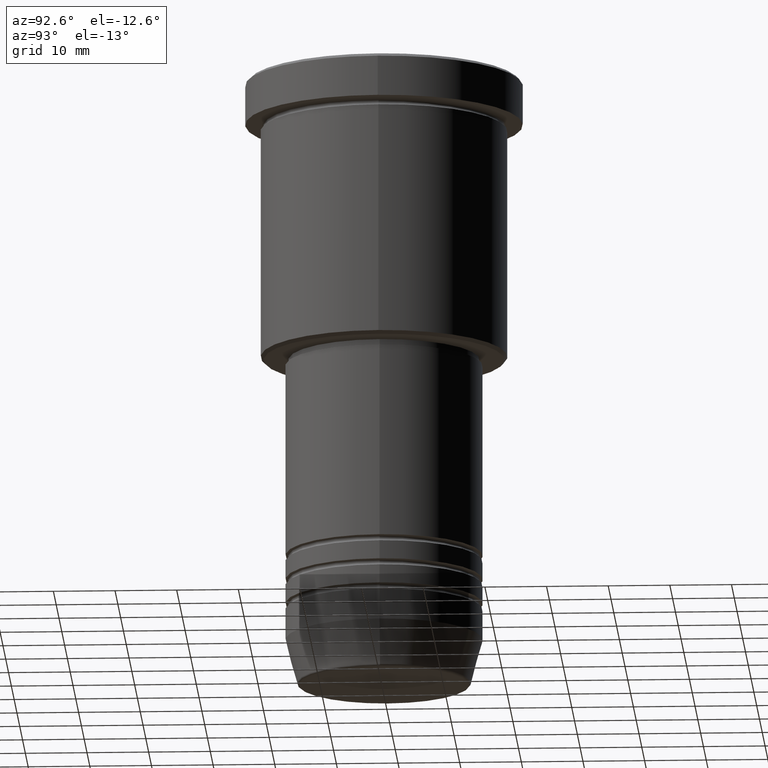
[diagram: clean part render]
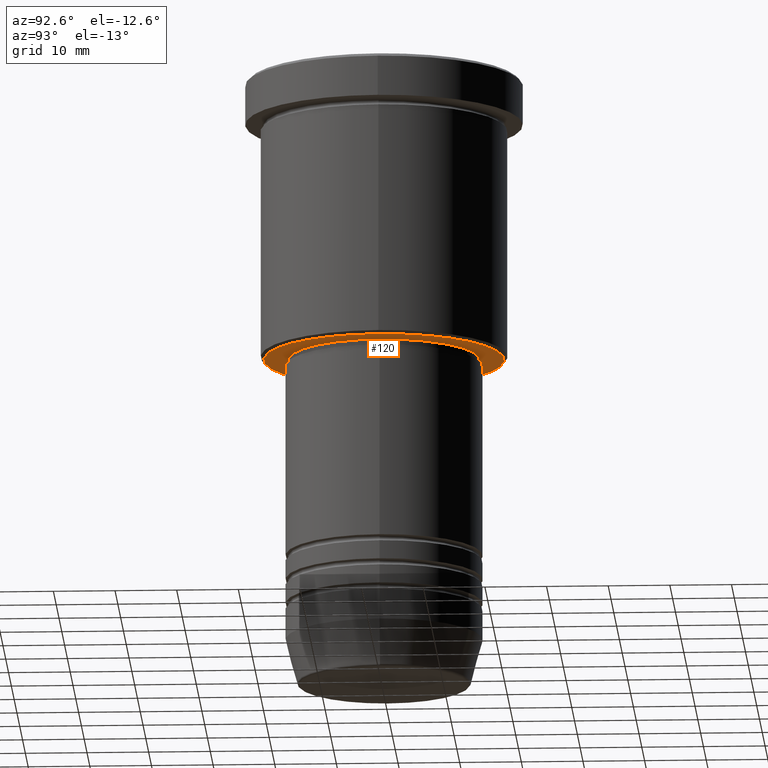
[diagram: same view with one face highlighted and labeled with its STEP entity id]
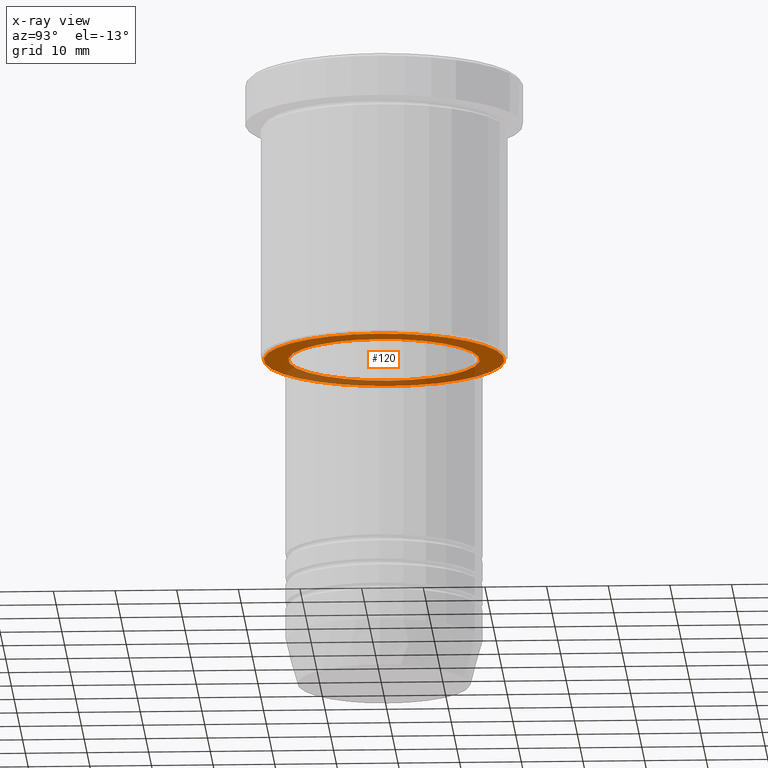
[diagram: x-ray of the same camera — body ghosted, the highlighted face saturated]
A machine part, auxiliary view. The second image highlights one B-rep face of the part: STEP entity #120.
The next image is the same camera in x-ray: the body ghosted, the highlighted face saturated — about 34% of this face is hidden behind the body in this view.
In plain terms, the highlighted planar face has unit normal (0, 0, -1).
Its self-contained STEP definition (entity closure, byte-faithful):
#6 = DIRECTION ( 'NONE',  ( -1.000000000000000000, 0.000000000000000000, 0.000000000000000000 ) ) ;
#28 = VERTEX_POINT ( 'NONE', #458 ) ;
#48 = CARTESIAN_POINT ( 'NONE',  ( 0.000000000000000000, 20.00000000000000355, -46.00000000000000000 ) ) ;
#64 = EDGE_CURVE ( 'NONE', #28, #90, #512, .T. ) ;
#77 = EDGE_LOOP ( 'NONE', ( #410, #918 ) ) ;
#90 = VERTEX_POINT ( 'NONE', #511 ) ;
#120 = ADVANCED_FACE ( 'NONE', ( #1132, #304 ), #502, .T. ) ;
#152 = DIRECTION ( 'NONE',  ( -1.000000000000000000, 0.000000000000000000, 0.000000000000000000 ) ) ;
#180 = ORIENTED_EDGE ( 'NONE', *, *, #64, .T. ) ;
#224 = CIRCLE ( 'NONE', #1049, 15.50000000000000000 ) ;
#227 = CIRCLE ( 'NONE', #263, 19.50000000000001776 ) ;
#263 = AXIS2_PLACEMENT_3D ( 'NONE', #1042, #509, #152 ) ;
#302 = ORIENTED_EDGE ( 'NONE', *, *, #400, .T. ) ;
#304 = FACE_BOUND ( 'NONE', #1026, .T. ) ;
#400 = EDGE_CURVE ( 'NONE', #90, #28, #224, .T. ) ;
#408 = VERTEX_POINT ( 'NONE', #896 ) ;
#410 = ORIENTED_EDGE ( 'NONE', *, *, #805, .T. ) ;
#429 = CARTESIAN_POINT ( 'NONE',  ( 0.000000000000000000, 0.000000000000000000, -46.00000000000000000 ) ) ;
#458 = CARTESIAN_POINT ( 'NONE',  ( -15.50000000000000000, 1.898202538678397557E-15, -46.00000000000000000 ) ) ;
#476 = CARTESIAN_POINT ( 'NONE',  ( -19.50000000000001776, 2.418677428316023909E-15, -46.00000000000000000 ) ) ;
#502 = PLANE ( 'NONE',  #720 ) ;
#509 = DIRECTION ( 'NONE',  ( 0.000000000000000000, 0.000000000000000000, -1.000000000000000000 ) ) ;
#511 = CARTESIAN_POINT ( 'NONE',  ( 15.50000000000000000, 0.000000000000000000, -46.00000000000000000 ) ) ;
#512 = CIRCLE ( 'NONE', #1174, 15.50000000000000000 ) ;
#519 = VERTEX_POINT ( 'NONE', #476 ) ;
#561 = CARTESIAN_POINT ( 'NONE',  ( 0.000000000000000000, 0.000000000000000000, -46.00000000000000000 ) ) ;
#713 = DIRECTION ( 'NONE',  ( -0.000000000000000000, -0.000000000000000000, 1.000000000000000000 ) ) ;
#720 = AXIS2_PLACEMENT_3D ( 'NONE', #48, #946, #857 ) ;
#805 = EDGE_CURVE ( 'NONE', #408, #519, #227, .T. ) ;
#833 = CIRCLE ( 'NONE', #1088, 19.50000000000001776 ) ;
#857 = DIRECTION ( 'NONE',  ( -1.000000000000000000, 0.000000000000000000, -0.000000000000000000 ) ) ;
#896 = CARTESIAN_POINT ( 'NONE',  ( 19.50000000000001776, 0.000000000000000000, -46.00000000000000000 ) ) ;
#918 = ORIENTED_EDGE ( 'NONE', *, *, #1055, .T. ) ;
#921 = DIRECTION ( 'NONE',  ( 0.000000000000000000, 0.000000000000000000, -1.000000000000000000 ) ) ;
#946 = DIRECTION ( 'NONE',  ( 0.000000000000000000, 0.000000000000000000, -1.000000000000000000 ) ) ;
#981 = DIRECTION ( 'NONE',  ( -0.000000000000000000, -0.000000000000000000, 1.000000000000000000 ) ) ;
#1026 = EDGE_LOOP ( 'NONE', ( #302, #180 ) ) ;
#1042 = CARTESIAN_POINT ( 'NONE',  ( 0.000000000000000000, 0.000000000000000000, -46.00000000000000000 ) ) ;
#1049 = AXIS2_PLACEMENT_3D ( 'NONE', #1134, #713, #1080 ) ;
#1055 = EDGE_CURVE ( 'NONE', #519, #408, #833, .T. ) ;
#1059 = DIRECTION ( 'NONE',  ( 1.000000000000000000, 0.000000000000000000, 0.000000000000000000 ) ) ;
#1080 = DIRECTION ( 'NONE',  ( 1.000000000000000000, 0.000000000000000000, 0.000000000000000000 ) ) ;
#1088 = AXIS2_PLACEMENT_3D ( 'NONE', #561, #921, #6 ) ;
#1132 = FACE_OUTER_BOUND ( 'NONE', #77, .T. ) ;
#1134 = CARTESIAN_POINT ( 'NONE',  ( 0.000000000000000000, 0.000000000000000000, -46.00000000000000000 ) ) ;
#1174 = AXIS2_PLACEMENT_3D ( 'NONE', #429, #981, #1059 ) ;